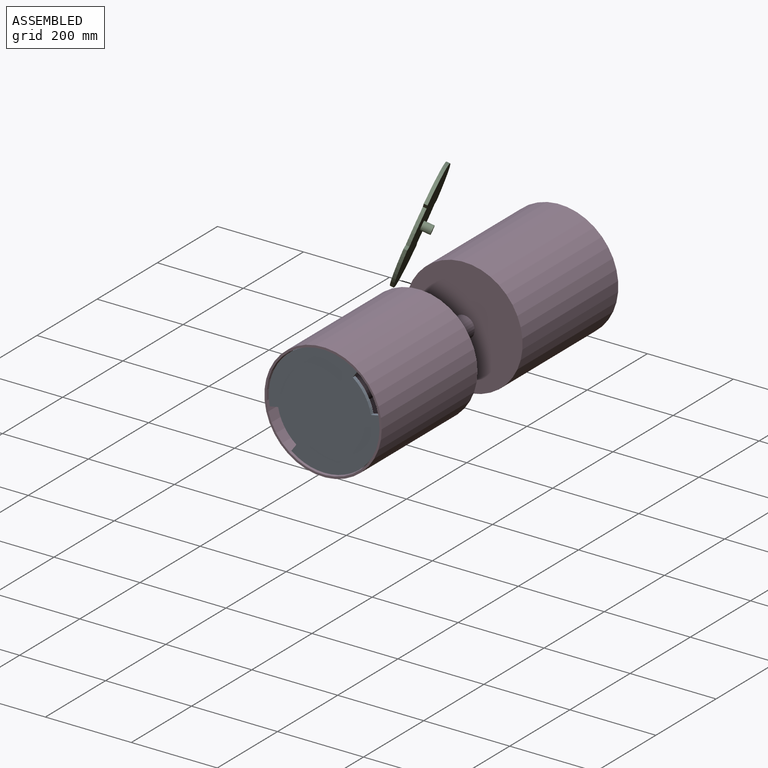
[diagram: assembled view]
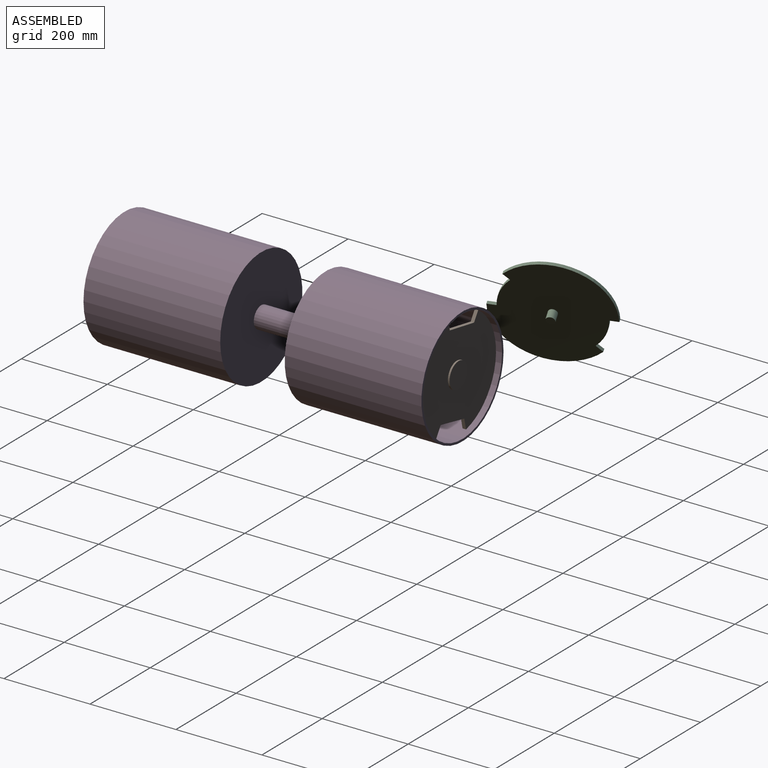
[diagram: assembled view, second angle]
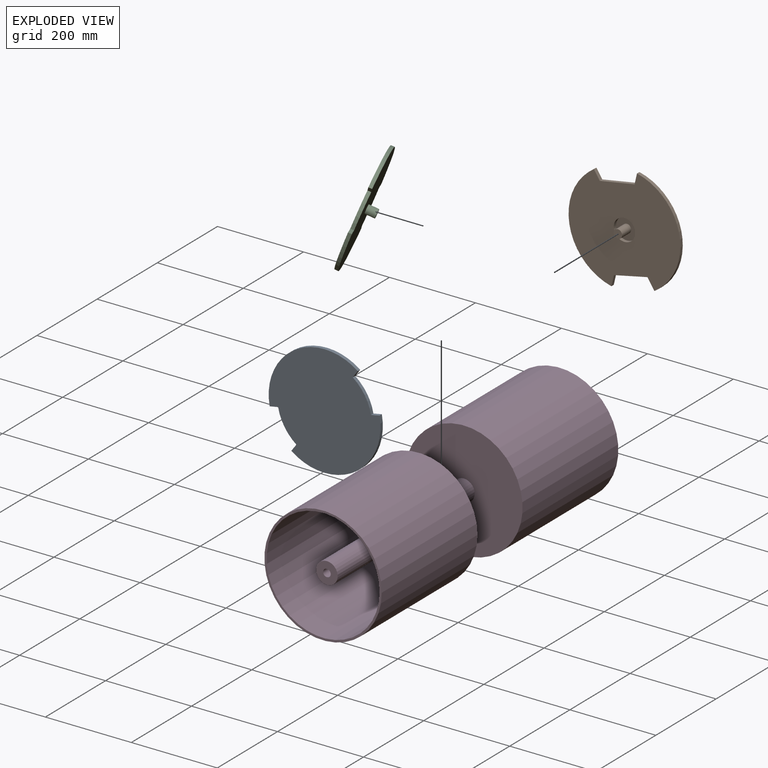
[diagram: exploded view]
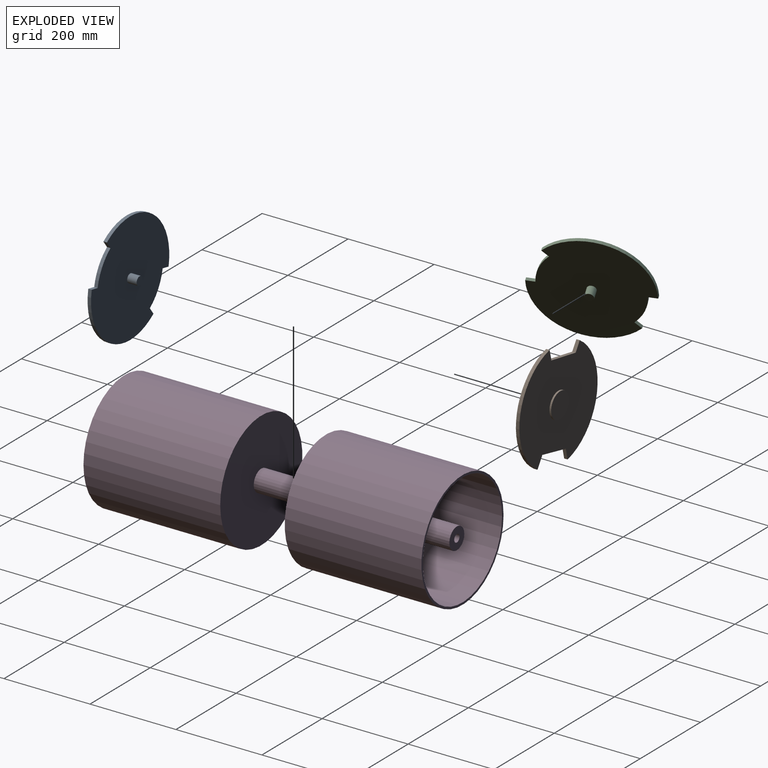
[diagram: exploded view, second angle]
ASSEMBLY  parts=4 mates=2
PART A: 12 faces, bbox 260x30x260 mm
  f0: cylinder r=130mm len=207.43mm, axis (0,1,0), area 2493.1mm2, adj f1,f2,f6,f7
  f1: plane 260x260mm, normal (0,-1,0), area 49520.1mm2, adj f0,f3,f4,f5,f6,f7,f8,f9
  f2: plane 260x260mm, normal (0,1,0), area 49205.9mm2, adj f0,f3,f4,f5,f6,f7,f8,f9
  f3: cylinder r=130mm len=207.43mm, axis (0,1,0), area 2493.1mm2, adj f1,f2,f4,f9
  f4: plane 16.07x11.91mm, normal (-0.8,0,0.6), area 160mm2, adj f1,f2,f3,f5
  f5: cylinder r=110mm len=67.75mm, axis (0,-1,0), area 655mm2, adj f1,f2,f4,f6
  f6: plane 19.65x8mm, normal (0.19,0,-0.98), area 160mm2, adj f0,f1,f2,f5
  f7: plane 16.07x11.91mm, normal (0.8,0,-0.6), area 160mm2, adj f0,f1,f2,f8
  f8: cylinder r=110mm len=67.75mm, axis (0,-1,0), area 655mm2, adj f1,f2,f7,f9
  f9: plane 19.65x8mm, normal (-0.19,0,0.98), area 160mm2, adj f1,f2,f3,f8
  f10: cylinder r=10mm len=22mm, axis (0,-1,0), area 1382.3mm2, adj f2,f11
  f11: plane 20x20mm, normal (0,1,0), area 314.2mm2, adj f10
PART B: 16 faces, bbox 260x34x253.1 mm
  f0: cylinder r=130mm len=235.44mm, axis (0,-1,0), area 2422.9mm2, adj f2,f3,f11,f14
  f1: cylinder r=130mm len=236.49mm, axis (0,-1,0), area 2444.1mm2, adj f2,f3,f10,f13
  f2: plane 260x253.06mm, normal (0,1,0), area 45301.3mm2, adj f0,f1,f4,f10,f11,f12,f13,f14
  f3: plane 260x253.06mm, normal (0,-1,0), area 44437.4mm2, adj f0,f1,f6,f10,f11,f12,f13,f14
  f4: cylinder r=25mm len=50mm, axis (0,-1,0), area 1256.6mm2, adj f2,f7
  f5: plane 60x60mm, normal (0,-1,0), area 2827.4mm2, adj f6
  f6: cylinder r=30mm len=60mm, axis (0,1,0), area 754mm2, adj f3,f5
  f7: plane 50x50mm, normal (0,1,0), area 1649.3mm2, adj f4,f8
  f8: cylinder r=10mm len=30mm, axis (0,-1,0), area 1885mm2, adj f7,f9
  f9: plane 20x20mm, normal (0,1,0), area 314.2mm2, adj f8
  f10: plane 25x16.03mm, normal (-0.84,0,0.54), area 237.6mm2, adj f1,f2,f3,f12
  f11: plane 25x8mm, normal (0.97,0,0.23), area 205.5mm2, adj f0,f2,f3,f12
  f12: plane 78.08x16.57mm, normal (0.21,0,0.98), area 638.5mm2, adj f2,f3,f10,f11
  f13: plane 24.33x8mm, normal (-0.97,0,-0.23), area 200mm2, adj f1,f2,f3,f15
  f14: plane 21.05x13.5mm, normal (0.84,0,-0.54), area 200mm2, adj f0,f2,f3,f15
  f15: plane 80.77x14.34mm, normal (-0.17,0,-0.98), area 656.3mm2, adj f2,f3,f13,f14
PART C: same geometry as A
PART D: 19 faces, bbox 273x786x273 mm
  f0: cylinder r=25mm len=150mm, axis (0,1,0), area 23561.9mm2, adj f2,f9
  f1: cylinder r=136.5mm len=318mm, axis (0,1,0), area 272734.2mm2, adj f2,f4
  f2: plane 273x273mm, normal (0,1,0), area 56571.4mm2, adj f0,f1
  f3: cylinder r=131.5mm len=310mm, axis (0,1,0), area 256134mm2, adj f4,f5
  f4: plane 273x273mm, normal (0,-1,0), area 4209.7mm2, adj f1,f3
  f5: plane 263x263mm, normal (0,-1,0), area 52361.7mm2, adj f3,f6
  f6: cylinder r=25mm len=297mm, axis (0,1,0), area 46652.7mm2, adj f5,f7
  f7: plane 50x50mm, normal (0,-1,0), area 1723mm2, adj f6,f17
  f8: cylinder r=136.5mm len=318mm, axis (0,-1,0), area 272734.2mm2, adj f9,f11
  f9: plane 273x273mm, normal (0,-1,0), area 56571.4mm2, adj f0,f8
  f10: cylinder r=131.5mm len=310mm, axis (0,-1,0), area 256134mm2, adj f11,f12
  f11: plane 273x273mm, normal (0,1,0), area 4209.7mm2, adj f8,f10
  f12: plane 263x263mm, normal (0,1,0), area 52361.7mm2, adj f10,f13
  f13: cylinder r=25mm len=297mm, axis (0,-1,0), area 46652.7mm2, adj f12,f14
  f14: plane 50x50mm, normal (0,1,0), area 1723mm2, adj f13,f15
  f15: cylinder r=8.75mm len=40mm, axis (0,1,0), area 2199.1mm2, adj f14,f16
  f16: plane 17.5x17.5mm, normal (0,1,0), area 240.5mm2, adj f15
  f17: cylinder r=8.75mm len=40mm, axis (0,-1,0), area 2199.1mm2, adj f7,f18
  f18: plane 17.5x17.5mm, normal (0,-1,0), area 240.5mm2, adj f17
PLACE A t=(549.33,-48.27,-47.44)mm
PLACE B rot(axis=(1,0,0),180deg) t=(-608.58,-61.27,294.16)mm
PLACE C rot(axis=(-0.57,-0.81,0.11),161.9deg) t=(-310.2,1118.06,113.32)mm
PLACE D t=(-145.21,-48.27,53.35)mm
MATE slider A.f0 <-> D.f1  axis (0,1,0) through (-145.21,-428.27,53.35)mm
MATE slider B.f0 <-> D.f1  axis (0,-1,0) through (-145.21,331.73,53.35)mm
